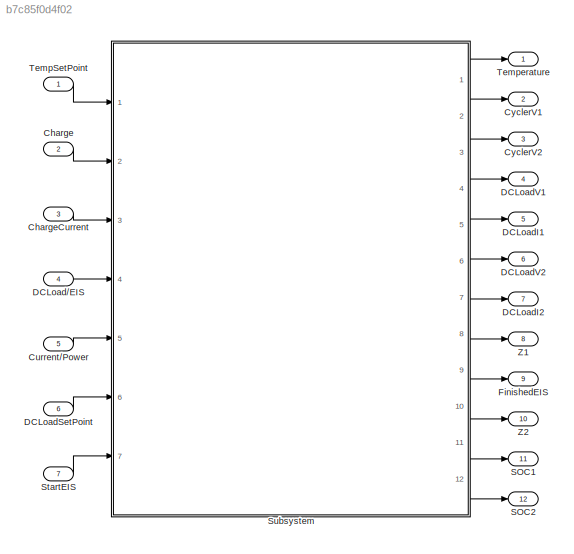
MODEL slx_b7c85f0d4f02
KIND model
CONFIG AbsTol = auto
CONFIG EnableMultiTasking = off
CONFIG FixedStep = auto
CONFIG MaxStep = auto
CONFIG MinStep = auto
CONFIG RelTol = 1e-3
CONFIG SampleTimeConstraint = Unconstrained
CONFIG SolverName = VariableStepAuto
CONFIG StartTime = 0.0
CONFIG StopTime = 10.0
BLOCK [Inport] Charge
  NameLocation = left
  Port = 2
BLOCK [Inport] ChargeCurrent
  NameLocation = left
  Port = 3
BLOCK [Inport] Current//Power
  NameLocation = left
  Port = 5
BLOCK [Outport] CyclerV1
  NameLocation = right
  Port = 2
BLOCK [Outport] CyclerV2
  NameLocation = right
  Port = 3
BLOCK [Inport] DCLoad//EIS
  NameLocation = left
  Port = 4
BLOCK [Outport] DCLoadI1
  NameLocation = right
  Port = 5
BLOCK [Outport] DCLoadI2
  NameLocation = right
  Port = 7
BLOCK [Inport] DCLoadSetPoint
  NameLocation = left
  Port = 6
BLOCK [Outport] DCLoadV1
  NameLocation = right
  Port = 4
BLOCK [Outport] DCLoadV2
  NameLocation = right
  Port = 6
BLOCK [Outport] FinishedEIS
  NameLocation = right
  Port = 9
BLOCK [Outport] SOC1
  NameLocation = right
  Port = 11
BLOCK [Outport] SOC2
  NameLocation = right
  Port = 12
BLOCK [Inport] StartEIS
  NameLocation = left
  Port = 7
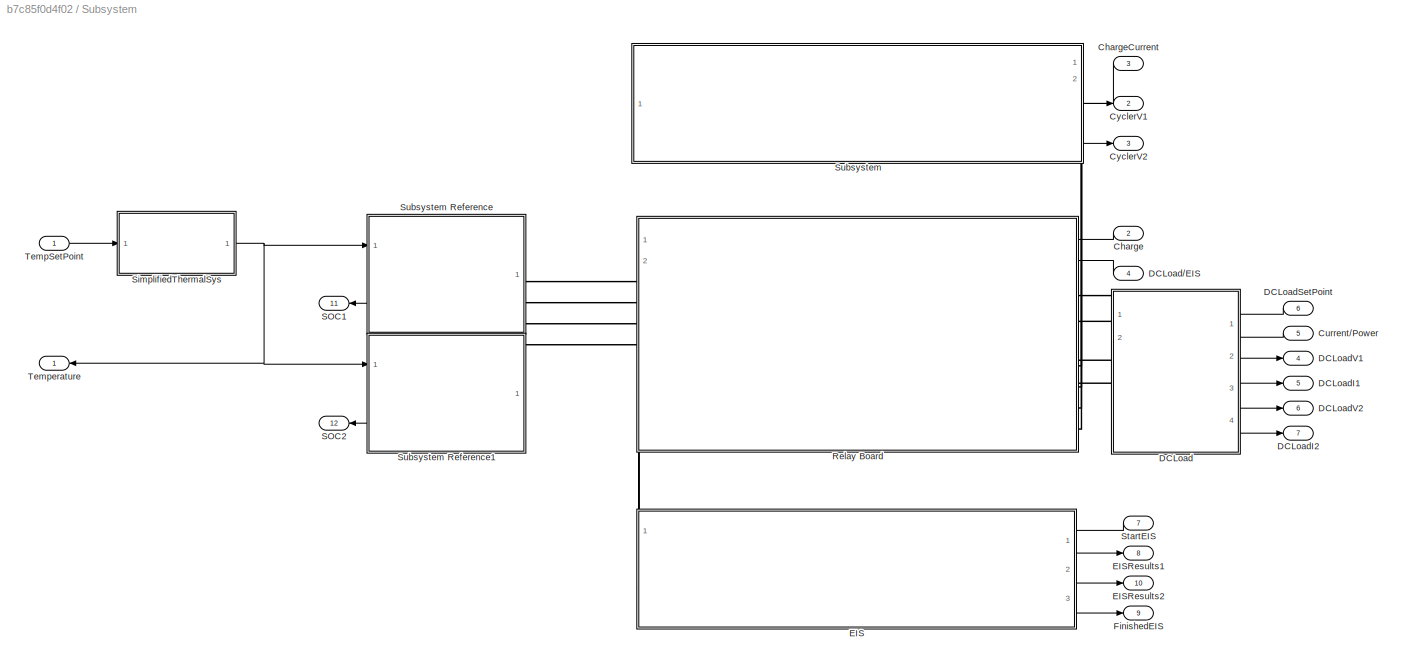
BLOCK [SubSystem] Subsystem
  Ports = [7, 12]
  RequestExecContextInheritance = off
BLOCK [Inport] Subsystem/Charge
  NameLocation = right
  Port = 2
BLOCK [Inport] Subsystem/ChargeCurrent
  NameLocation = right
  Port = 3
BLOCK [Inport] Subsystem/Current//Power
  NameLocation = right
  Port = 5
BLOCK [Outport] Subsystem/CyclerV1
  NameLocation = right
  Port = 2
BLOCK [Outport] Subsystem/CyclerV2
  NameLocation = right
  Port = 3
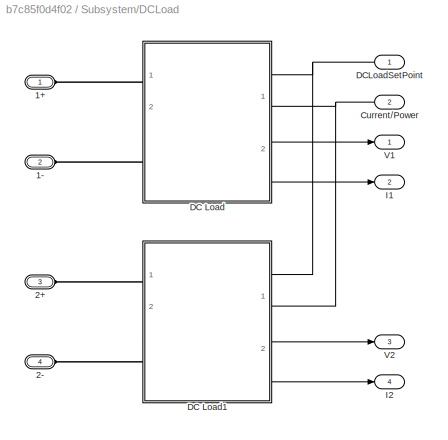
BLOCK [SubSystem] Subsystem/DCLoad
  PortSchema = {"entries":[{"content":{"sides":[{"content":{"connectorIds":["LConn1","LConn2","LConn3","LConn4"]},"type":"ConnectorPlacement.EquallySpacedRectSide","uuid":"7514b71b-63b4-4d0a-a4c6-1cc6fdc01e8b"},{"content":{"connectorIds":["In1","In2","Out1","Out2","Out3","Out4"],"side":"RIGHT"},"type":"ConnectorPlacement.EquallySpacedRectSide","uuid":"8544a5e6-47c4-463c-a4b2-15ea7677f310"},{"content":{"connector...<+303ch>
  Ports = [2, 4, 0, 0, 0, 4]
  RequestExecContextInheritance = off
BLOCK [Inport] Subsystem/DCLoad//EIS
  NameLocation = right
  Port = 4
BLOCK [PMIOPort] Subsystem/DCLoad/1+
  Side = Left
BLOCK [PMIOPort] Subsystem/DCLoad/1-
  Port = 2
  Side = Left
BLOCK [PMIOPort] Subsystem/DCLoad/2+
  Port = 3
  Side = Left
BLOCK [PMIOPort] Subsystem/DCLoad/2-
  Port = 4
  Side = Left
BLOCK [Inport] Subsystem/DCLoad/Current//Power
  NameLocation = right
  Port = 2
BLOCK [SubSystem] Subsystem/DCLoad/DC Load
  PortSchema = {"entries":[{"content":{"sides":[{"content":{"connectorIds":["LConn1","LConn2"]},"type":"ConnectorPlacement.EquallySpacedRectSide","uuid":"747fffec-1188-4560-a63f-e796ff73abc9"},{"content":{"connectorIds":["In1","In2","Out1","Out2"],"side":"RIGHT"},"type":"ConnectorPlacement.EquallySpacedRectSide","uuid":"c8b2c27b-57f0-426f-8f7f-d4e2bbdef76e"},{"content":{"connectorIds":[],"side":"TOP"},"type":"Co...<+271ch>
  Ports = [2, 2, 0, 0, 0, 2]
  ReferencedSubsystem = DC_Load
  RequestExecContextInheritance = off
BLOCK [SubSystem] Subsystem/DCLoad/DC Load1
  PortSchema = {"entries":[{"content":{"sides":[{"content":{"connectorIds":["LConn1","LConn2"]},"type":"ConnectorPlacement.EquallySpacedRectSide","uuid":"747fffec-1188-4560-a63f-e796ff73abc9"},{"content":{"connectorIds":["In1","In2","Out1","Out2"],"side":"RIGHT"},"type":"ConnectorPlacement.EquallySpacedRectSide","uuid":"c8b2c27b-57f0-426f-8f7f-d4e2bbdef76e"},{"content":{"connectorIds":[],"side":"TOP"},"type":"Co...<+271ch>
  Ports = [2, 2, 0, 0, 0, 2]
  ReferencedSubsystem = DC_Load
  RequestExecContextInheritance = off
BLOCK [Inport] Subsystem/DCLoad/DCLoadSetPoint
  NameLocation = right
BLOCK [Outport] Subsystem/DCLoad/I1
  NameLocation = right
  Port = 2
BLOCK [Outport] Subsystem/DCLoad/I2
  NameLocation = right
  Port = 4
BLOCK [Outport] Subsystem/DCLoad/V1
  NameLocation = right
BLOCK [Outport] Subsystem/DCLoad/V2
  NameLocation = right
  Port = 3
BLOCK [Outport] Subsystem/DCLoadI1
  NameLocation = right
  Port = 5
BLOCK [Outport] Subsystem/DCLoadI2
  NameLocation = right
  Port = 7
BLOCK [Inport] Subsystem/DCLoadSetPoint
  NameLocation = right
  Port = 6
BLOCK [Outport] Subsystem/DCLoadV1
  NameLocation = right
  Port = 4
BLOCK [Outport] Subsystem/DCLoadV2
  NameLocation = right
  Port = 6
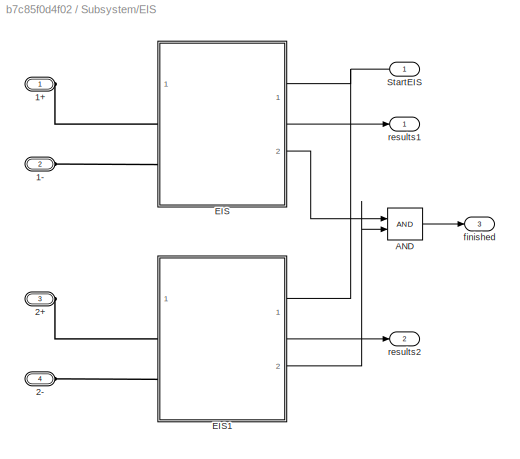
BLOCK [SubSystem] Subsystem/EIS
  PortSchema = {"entries":[{"content":{"sides":[{"content":{"connectorIds":[]},"type":"ConnectorPlacement.EquallySpacedRectSide","uuid":"cb9ec944-41ce-4636-a083-755c91ef9aeb"},{"content":{"connectorIds":["In1","Out1","Out2","Out3"],"side":"RIGHT"},"type":"ConnectorPlacement.EquallySpacedRectSide","uuid":"d9055541-2ed5-47ee-9ebd-2502587374ee"},{"content":{"connectorIds":["LConn1","LConn2","LConn3","LConn4"],"side...<+290ch>
  Ports = [1, 3, 0, 0, 0, 4]
  RequestExecContextInheritance = off
BLOCK [PMIOPort] Subsystem/EIS/1+
  Side = Left
BLOCK [PMIOPort] Subsystem/EIS/1-
  Port = 2
  Side = Left
BLOCK [PMIOPort] Subsystem/EIS/2+
  Port = 3
  Side = Left
BLOCK [PMIOPort] Subsystem/EIS/2-
  Port = 4
  Side = Left
BLOCK [Logic] Subsystem/EIS/AND
  AllPortsSameDT = off
  IconShape = distinctive
  OutDataTypeStr = boolean
  Ports = [2, 1]
BLOCK [SubSystem] Subsystem/EIS/EIS
  PortSchema = {"entries":[{"content":{"sides":[{"content":{"connectorIds":["LConn1","LConn2"]},"type":"ConnectorPlacement.EquallySpacedRectSide","uuid":"b4295795-bb4f-4226-ae08-13ff31e69c7e"},{"content":{"connectorIds":["In1","Out1","Out2"],"side":"RIGHT"},"type":"ConnectorPlacement.EquallySpacedRectSide","uuid":"cf500fd2-35e2-47f1-8094-2f89cbc86857"},{"content":{"connectorIds":[],"side":"TOP"},"type":"Connecto...<+265ch>
  Ports = [1, 2, 0, 0, 0, 2]
  ReferencedSubsystem = EIS
  RequestExecContextInheritance = off
BLOCK [SubSystem] Subsystem/EIS/EIS1
  PortSchema = {"entries":[{"content":{"sides":[{"content":{"connectorIds":["LConn1","LConn2"]},"type":"ConnectorPlacement.EquallySpacedRectSide","uuid":"b4295795-bb4f-4226-ae08-13ff31e69c7e"},{"content":{"connectorIds":["In1","Out1","Out2"],"side":"RIGHT"},"type":"ConnectorPlacement.EquallySpacedRectSide","uuid":"cf500fd2-35e2-47f1-8094-2f89cbc86857"},{"content":{"connectorIds":[],"side":"TOP"},"type":"Connecto...<+265ch>
  Ports = [1, 2, 0, 0, 0, 2]
  ReferencedSubsystem = EIS
  RequestExecContextInheritance = off
BLOCK [Inport] Subsystem/EIS/StartEIS
BLOCK [Outport] Subsystem/EIS/finished
  Port = 3
BLOCK [Outport] Subsystem/EIS/results1
BLOCK [Outport] Subsystem/EIS/results2
  Port = 2
BLOCK [Outport] Subsystem/EISResults1
  NameLocation = right
  Port = 8
BLOCK [Outport] Subsystem/EISResults2
  NameLocation = right
  Port = 10
BLOCK [Outport] Subsystem/FinishedEIS
  NameLocation = right
  Port = 9
BLOCK [SubSystem] Subsystem/Relay Board
  PortSchema = {"entries":[{"content":{"sides":[{"content":{"connectorIds":["LConn1","LConn2","LConn3","LConn4"]},"type":"ConnectorPlacement.EquallySpacedRectSide","uuid":"b8d313c3-c08d-4f66-88c5-0966ca8ce19e"},{"content":{"connectorIds":["In1","In2","RConn1","RConn2","RConn3","RConn4"],"side":"RIGHT"},"type":"ConnectorPlacement.EquallySpacedRectSide","uuid":"237515a3-1e1f-4c58-9863-54ac3610b1e3"},{"content":{"c...<+525ch>
  Ports = [2, 0, 0, 0, 0, 8, 8]
  ReferencedSubsystem = Relay_Board
  RequestExecContextInheritance = off
BLOCK [Outport] Subsystem/SOC1
  Port = 11
BLOCK [Outport] Subsystem/SOC2
  Port = 12
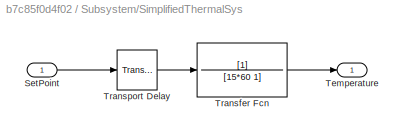
BLOCK [SubSystem] Subsystem/SimplifiedThermalSys
  Ports = [1, 1]
  RequestExecContextInheritance = off
BLOCK [Inport] Subsystem/SimplifiedThermalSys/SetPoint
BLOCK [Outport] Subsystem/SimplifiedThermalSys/Temperature
BLOCK [TransferFcn] Subsystem/SimplifiedThermalSys/Transfer Fcn
  Denominator = [15*60 1]
  NameLocation = top
BLOCK [TransportDelay] Subsystem/SimplifiedThermalSys/Transport Delay
  DelayTime = 5
  NameLocation = top
  Ports = [1, 1]
BLOCK [Inport] Subsystem/StartEIS
  NameLocation = right
  Port = 7
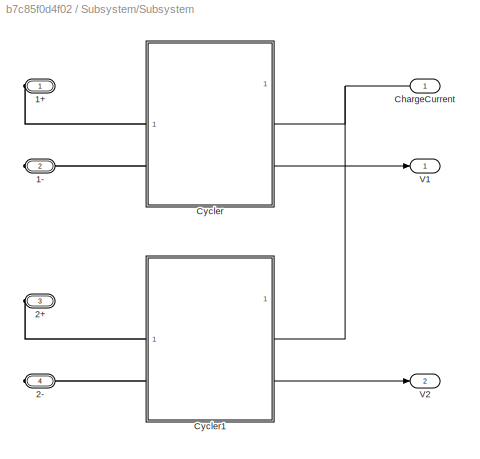
BLOCK [SubSystem] Subsystem/Subsystem
  PortSchema = {"entries":[{"content":{"sides":[{"content":{"connectorIds":[]},"type":"ConnectorPlacement.EquallySpacedRectSide","uuid":"cb9ec944-41ce-4636-a083-755c91ef9aeb"},{"content":{"connectorIds":["In1","Out1","Out2"],"side":"RIGHT"},"type":"ConnectorPlacement.EquallySpacedRectSide","uuid":"d9055541-2ed5-47ee-9ebd-2502587374ee"},{"content":{"connectorIds":[],"side":"TOP"},"type":"ConnectorPlacement.Equall...<+427ch>
  Ports = [1, 2, 0, 0, 0, 0, 4]
  RequestExecContextInheritance = off
BLOCK [SubSystem] Subsystem/Subsystem Reference
  PortSchema = {"entries":[{"content":{"sides":[{"content":{"connectorIds":["In1","Out1"]},"type":"ConnectorPlacement.EquallySpacedRectSide","uuid":"fc03161e-b2e2-4ac7-873d-06369879f611"},{"content":{"connectorIds":["LConn1","LConn2"],"side":"RIGHT"},"type":"ConnectorPlacement.EquallySpacedRectSide","uuid":"979b6df9-5e16-4e4c-95de-06d721c40976"},{"content":{"connectorIds":[],"side":"TOP"},"type":"ConnectorPlacem...<+258ch>
  Ports = [1, 1, 0, 0, 0, 2]
  ReferencedSubsystem = Battery
  RequestExecContextInheritance = off
BLOCK [SubSystem] Subsystem/Subsystem Reference1
  PortSchema = {"entries":[{"content":{"sides":[{"content":{"connectorIds":["In1","Out1"]},"type":"ConnectorPlacement.EquallySpacedRectSide","uuid":"fc03161e-b2e2-4ac7-873d-06369879f611"},{"content":{"connectorIds":["LConn1","LConn2"],"side":"RIGHT"},"type":"ConnectorPlacement.EquallySpacedRectSide","uuid":"979b6df9-5e16-4e4c-95de-06d721c40976"},{"content":{"connectorIds":[],"side":"TOP"},"type":"ConnectorPlacem...<+258ch>
  Ports = [1, 1, 0, 0, 0, 2]
  ReferencedSubsystem = Battery
  RequestExecContextInheritance = off
BLOCK [PMIOPort] Subsystem/Subsystem/1+
  Side = Right
BLOCK [PMIOPort] Subsystem/Subsystem/1-
  Port = 2
  Side = Right
BLOCK [PMIOPort] Subsystem/Subsystem/2+
  Port = 3
  Side = Right
BLOCK [PMIOPort] Subsystem/Subsystem/2-
  Port = 4
  Side = Right
BLOCK [Inport] Subsystem/Subsystem/ChargeCurrent
BLOCK [SubSystem] Subsystem/Subsystem/Cycler
  PortSchema = {"entries":[{"content":{"sides":[{"content":{"connectorIds":["RConn1","RConn2"]},"type":"ConnectorPlacement.EquallySpacedRectSide","uuid":"ea079f9a-06f7-44f0-82a3-29caf877d5c1"},{"content":{"connectorIds":["In1","Out1"],"side":"RIGHT"},"type":"ConnectorPlacement.EquallySpacedRectSide","uuid":"2059dbe0-ef1b-4ded-af29-4eaf93ad6300"},{"content":{"connectorIds":[],"side":"TOP"},"type":"ConnectorPlacem...<+402ch>
  Ports = [1, 1, 0, 0, 0, 0, 2]
  ReferencedSubsystem = Cycler
  RequestExecContextInheritance = off
BLOCK [SubSystem] Subsystem/Subsystem/Cycler1
  PortSchema = {"entries":[{"content":{"sides":[{"content":{"connectorIds":["RConn1","RConn2"]},"type":"ConnectorPlacement.EquallySpacedRectSide","uuid":"ea079f9a-06f7-44f0-82a3-29caf877d5c1"},{"content":{"connectorIds":["In1","Out1"],"side":"RIGHT"},"type":"ConnectorPlacement.EquallySpacedRectSide","uuid":"2059dbe0-ef1b-4ded-af29-4eaf93ad6300"},{"content":{"connectorIds":[],"side":"TOP"},"type":"ConnectorPlacem...<+402ch>
  Ports = [1, 1, 0, 0, 0, 0, 2]
  ReferencedSubsystem = Cycler
  RequestExecContextInheritance = off
BLOCK [Outport] Subsystem/Subsystem/V1
BLOCK [Outport] Subsystem/Subsystem/V2
  Port = 2
BLOCK [Inport] Subsystem/TempSetPoint
BLOCK [Outport] Subsystem/Temperature
BLOCK [Inport] TempSetPoint
  NameLocation = left
BLOCK [Outport] Temperature
  NameLocation = right
BLOCK [Outport] Z1
  NameLocation = right
  Port = 8
BLOCK [Outport] Z2
  NameLocation = right
  Port = 10
LINE Charge:1 -> Subsystem:2
LINE ChargeCurrent:1 -> Subsystem:3
LINE Current//Power:1 -> Subsystem:5
LINE DCLoad//EIS:1 -> Subsystem:4
LINE DCLoadSetPoint:1 -> Subsystem:6
LINE StartEIS:1 -> Subsystem:7
LINE Subsystem/Charge:1 -> Subsystem/Relay Board:1
LINE Subsystem/ChargeCurrent:1 -> Subsystem/Subsystem:1
LINE Subsystem/Current//Power:1 -> Subsystem/DCLoad:2
LINE Subsystem/DCLoad//EIS:1 -> Subsystem/Relay Board:2
NET Subsystem/DCLoad/Current//Power:1 -> Subsystem/DCLoad/DC Load1:2, Subsystem/DCLoad/DC Load:2
LINE Subsystem/DCLoad/DC Load1:1 -> Subsystem/DCLoad/V2:1
LINE Subsystem/DCLoad/DC Load1:2 -> Subsystem/DCLoad/I2:1
LINE Subsystem/DCLoad/DC Load:1 -> Subsystem/DCLoad/V1:1
LINE Subsystem/DCLoad/DC Load:2 -> Subsystem/DCLoad/I1:1
NET Subsystem/DCLoad/DCLoadSetPoint:1 -> Subsystem/DCLoad/DC Load1:1, Subsystem/DCLoad/DC Load:1
LINE Subsystem/DCLoad:1 -> Subsystem/DCLoadV1:1
LINE Subsystem/DCLoad:2 -> Subsystem/DCLoadI1:1
LINE Subsystem/DCLoad:3 -> Subsystem/DCLoadV2:1
LINE Subsystem/DCLoad:4 -> Subsystem/DCLoadI2:1
LINE Subsystem/DCLoadSetPoint:1 -> Subsystem/DCLoad:1
LINE Subsystem/EIS/AND:1 -> Subsystem/EIS/finished:1
LINE Subsystem/EIS/EIS1:1 -> Subsystem/EIS/results2:1
LINE Subsystem/EIS/EIS1:2 -> Subsystem/EIS/AND:2
LINE Subsystem/EIS/EIS:1 -> Subsystem/EIS/results1:1
LINE Subsystem/EIS/EIS:2 -> Subsystem/EIS/AND:1
NET Subsystem/EIS/StartEIS:1 -> Subsystem/EIS/EIS1:1, Subsystem/EIS/EIS:1
LINE Subsystem/EIS:1 -> Subsystem/EISResults1:1
LINE Subsystem/EIS:2 -> Subsystem/EISResults2:1
LINE Subsystem/EIS:3 -> Subsystem/FinishedEIS:1
LINE Subsystem/SimplifiedThermalSys/SetPoint:1 -> Subsystem/SimplifiedThermalSys/Transport Delay:1
LINE Subsystem/SimplifiedThermalSys/Transfer Fcn:1 -> Subsystem/SimplifiedThermalSys/Temperature:1
LINE Subsystem/SimplifiedThermalSys/Transport Delay:1 -> Subsystem/SimplifiedThermalSys/Transfer Fcn:1
NET Subsystem/SimplifiedThermalSys:1 -> Subsystem/Subsystem Reference1:1, Subsystem/Subsystem Reference:1, Subsystem/Temperature:1
LINE Subsystem/StartEIS:1 -> Subsystem/EIS:1
LINE Subsystem/Subsystem Reference1:1 -> Subsystem/SOC2:1
LINE Subsystem/Subsystem Reference:1 -> Subsystem/SOC1:1
NET Subsystem/Subsystem/ChargeCurrent:1 -> Subsystem/Subsystem/Cycler1:1, Subsystem/Subsystem/Cycler:1
LINE Subsystem/Subsystem/Cycler1:1 -> Subsystem/Subsystem/V2:1
LINE Subsystem/Subsystem/Cycler:1 -> Subsystem/Subsystem/V1:1
LINE Subsystem/Subsystem:1 -> Subsystem/CyclerV1:1
LINE Subsystem/Subsystem:2 -> Subsystem/CyclerV2:1
LINE Subsystem/TempSetPoint:1 -> Subsystem/SimplifiedThermalSys:1
LINE Subsystem:1 -> Temperature:1
LINE Subsystem:10 -> Z2:1
LINE Subsystem:11 -> SOC1:1
LINE Subsystem:12 -> SOC2:1
LINE Subsystem:2 -> CyclerV1:1
LINE Subsystem:3 -> CyclerV2:1
LINE Subsystem:4 -> DCLoadV1:1
LINE Subsystem:5 -> DCLoadI1:1
LINE Subsystem:6 -> DCLoadV2:1
LINE Subsystem:7 -> DCLoadI2:1
LINE Subsystem:8 -> Z1:1
LINE Subsystem:9 -> FinishedEIS:1
LINE TempSetPoint:1 -> Subsystem:1
PLINE Subsystem/DCLoad/1+:RConn1 -- Subsystem/DCLoad/DC Load:LConn1
PLINE Subsystem/DCLoad/1-:RConn1 -- Subsystem/DCLoad/DC Load:LConn2
PLINE Subsystem/DCLoad/2+:RConn1 -- Subsystem/DCLoad/DC Load1:LConn1
PLINE Subsystem/DCLoad/2-:RConn1 -- Subsystem/DCLoad/DC Load1:LConn2
PLINE Subsystem/DCLoad:LConn1 -- Subsystem/Relay Board:RConn1
PLINE Subsystem/DCLoad:LConn2 -- Subsystem/Relay Board:RConn2
PLINE Subsystem/DCLoad:LConn3 -- Subsystem/Relay Board:RConn3
PLINE Subsystem/DCLoad:LConn4 -- Subsystem/Relay Board:RConn4
PLINE Subsystem/EIS/1+:RConn1 -- Subsystem/EIS/EIS:LConn1
PLINE Subsystem/EIS/1-:RConn1 -- Subsystem/EIS/EIS:LConn2
PLINE Subsystem/EIS/2+:RConn1 -- Subsystem/EIS/EIS1:LConn1
PLINE Subsystem/EIS/2-:RConn1 -- Subsystem/EIS/EIS1:LConn2
PLINE Subsystem/EIS:LConn1 -- Subsystem/Relay Board:RConn5
PLINE Subsystem/EIS:LConn2 -- Subsystem/Relay Board:RConn6
PLINE Subsystem/EIS:LConn3 -- Subsystem/Relay Board:RConn7
PLINE Subsystem/EIS:LConn4 -- Subsystem/Relay Board:RConn8
PLINE Subsystem/Relay Board:LConn1 -- Subsystem/Subsystem Reference:LConn1
PLINE Subsystem/Relay Board:LConn2 -- Subsystem/Subsystem Reference:LConn2
PLINE Subsystem/Relay Board:LConn3 -- Subsystem/Subsystem Reference1:LConn1
PLINE Subsystem/Relay Board:LConn4 -- Subsystem/Subsystem Reference1:LConn2
PLINE Subsystem/Relay Board:LConn5 -- Subsystem/Subsystem:RConn1
PLINE Subsystem/Relay Board:LConn6 -- Subsystem/Subsystem:RConn2
PLINE Subsystem/Relay Board:LConn7 -- Subsystem/Subsystem:RConn3
PLINE Subsystem/Relay Board:LConn8 -- Subsystem/Subsystem:RConn4
PLINE Subsystem/Subsystem/1+:RConn1 -- Subsystem/Subsystem/Cycler:RConn1
PLINE Subsystem/Subsystem/1-:RConn1 -- Subsystem/Subsystem/Cycler:RConn2
PLINE Subsystem/Subsystem/2+:RConn1 -- Subsystem/Subsystem/Cycler1:RConn1
PLINE Subsystem/Subsystem/2-:RConn1 -- Subsystem/Subsystem/Cycler1:RConn2
note: NET lines group one-source signal fan-out (src -> all destinations, sorted); 1:1 wires keep LINE
